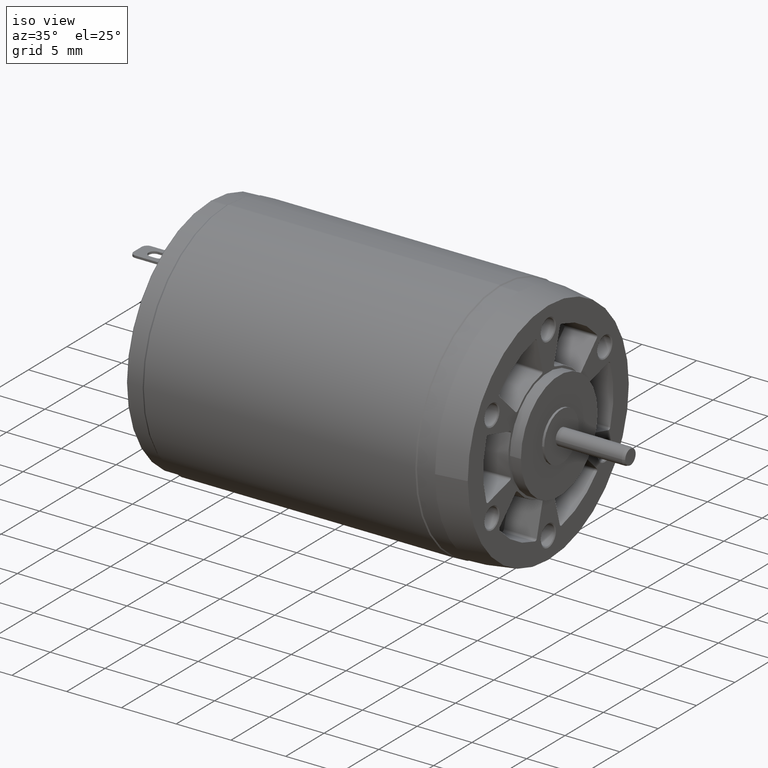
[diagram: clean part render]
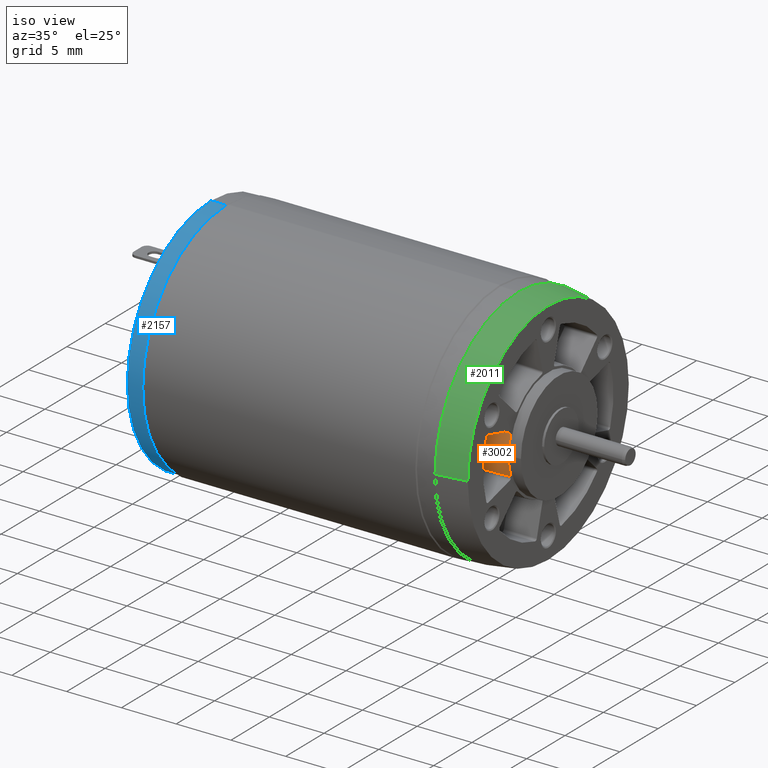
[diagram: same view with three faces highlighted in distinct colors, each labeled with its STEP entity id]
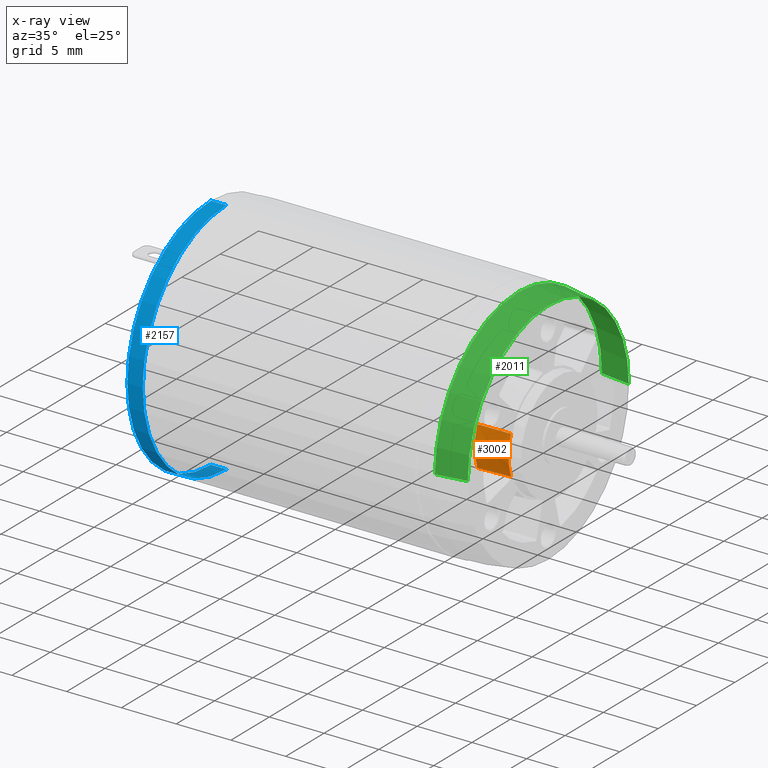
[diagram: x-ray of the same camera — body ghosted, the three highlighted faces saturated]
A machine part, iso view with three faces highlighted in distinct colors.
The next image is the same camera in x-ray (body ghosted, the three faces saturated) — at least one of them is partly hidden behind the body in this view.
Their STEP definitions:

[orange] entity #3002 — the highlighted conical surface has half-angle 2 deg.
#204=CARTESIAN_POINT('',(1.077665842305E2,2.428669876325E0,-3.989812658115E0));
#205=DIRECTION('',(-1.E0,-2.318000014156E-9,0.E0));
#206=DIRECTION('',(2.178664551331E-9,-9.398900694129E-1,-3.414771696893E-1));
#207=AXIS2_PLACEMENT_3D('',#204,#205,#206);
#999=CARTESIAN_POINT('',(1.047665842314E2,2.428669869371E0,-3.989812658115E0));
#1000=DIRECTION('',(1.E0,2.318000014156E-9,0.E0));
#1001=DIRECTION('',(2.179971639670E-9,-9.404535253444E-1,3.399222950430E-1));
#1002=AXIS2_PLACEMENT_3D('',#999,#1000,#1001);
#1031=CARTESIAN_POINT('',(1.047665828193E2,-2.560169979035E0,
-2.186653403359E0));
#1032=CARTESIAN_POINT('',(1.057665824605E2,-2.526329445484E0,
-2.195804452301E0));
#1033=CARTESIAN_POINT('',(1.067665820155E2,-2.492549014340E0,
-2.204998520851E0));
#1034=CARTESIAN_POINT('',(1.077665816572E2,-2.458708493840E0,
-2.214149565055E0));
#1036=CARTESIAN_POINT('',(1.047665820223E2,-2.560170228926E0,
-5.792971890259E0));
#1037=CARTESIAN_POINT('',(1.057665813772E2,-2.526318908624E0,
-5.783849529114E0));
#1038=CARTESIAN_POINT('',(1.067665835989E2,-2.492549121047E0,
-5.774626735226E0));
#1039=CARTESIAN_POINT('',(1.077665829538E2,-2.458697800744E0,
-5.765504374081E0));
#1537=CARTESIAN_POINT('',(1.077665842418E2,-2.458670080572E0,
-5.765461821887E0));
#1538=CARTESIAN_POINT('',(1.077665842418E2,-2.458670088295E0,
-2.214163515600E0));
#1539=VERTEX_POINT('',#1537);
#1540=VERTEX_POINT('',#1538);
#1676=CARTESIAN_POINT('',(1.047665842430E2,-2.560124017330E0,
-2.186637677360E0));
#1677=CARTESIAN_POINT('',(1.047665842430E2,-2.560124016306E0,
-5.792987641704E0));
#1678=VERTEX_POINT('',#1676);
#1679=VERTEX_POINT('',#1677);
#2990=CARTESIAN_POINT('',(1.062665820931E2,2.428669872848E0,-3.989812658115E0));
#2991=DIRECTION('',(-1.E0,-2.318000014156E-9,0.E0));
#2992=DIRECTION('',(2.179325282127E-9,-9.401748355552E-1,3.406923518201E-1));
#2993=AXIS2_PLACEMENT_3D('',#2990,#2991,#2992);
#2994=CONICAL_SURFACE('',#2993,5.252287133618E0,1.999998573254E0);
#2995=ORIENTED_EDGE('',*,*,#2947,.T.);
#2996=ORIENTED_EDGE('',*,*,#1933,.F.);
#2998=ORIENTED_EDGE('',*,*,#2997,.F.);
#2999=ORIENTED_EDGE('',*,*,#2973,.F.);
#3000=EDGE_LOOP('',(#2995,#2996,#2998,#2999));
#3001=FACE_OUTER_BOUND('',#3000,.F.);
#3002=ADVANCED_FACE('',(#3001),#2994,.T.);
#208=CIRCLE('',#207,5.199905942138E0);
#1003=CIRCLE('',#1002,5.304668175787E0);
#1035=B_SPLINE_CURVE_WITH_KNOTS('',3,(#1031,#1032,#1033,#1034),.UNSPECIFIED.,
.F.,.F.,(4,4),(0.E0,1.E0),.UNSPECIFIED.);
#1040=B_SPLINE_CURVE_WITH_KNOTS('',3,(#1036,#1037,#1038,#1039),.UNSPECIFIED.,
.F.,.F.,(4,4),(0.E0,1.E0),.UNSPECIFIED.);
#1933=EDGE_CURVE('',#1539,#1540,#208,.T.);
#2947=EDGE_CURVE('',#1678,#1540,#1035,.T.);
#2973=EDGE_CURVE('',#1678,#1679,#1003,.T.);
#2997=EDGE_CURVE('',#1679,#1539,#1040,.T.);

[blue] entity #2157 — the highlighted cylindrical surface (partial cylindrical patch) has radius 10.9 mm, axis along (-1, 0, 0).
#381=DIRECTION('',(-1.E0,0.E0,-2.331260796813E-7));
#382=VECTOR('',#381,1.400000792626E0);
#383=CARTESIAN_POINT('',(7.836658279336E1,2.428669867425E0,-1.488981265812E1));
#384=LINE('',#383,#382);
#385=CARTESIAN_POINT('',(7.696658204736E1,2.428669869102E0,-3.989812658115E0));
#386=DIRECTION('',(-1.E0,0.E0,0.E0));
#387=DIRECTION('',(0.E0,-2.050451959090E-10,-1.E0));
#388=AXIS2_PLACEMENT_3D('',#385,#386,#387);
#390=DIRECTION('',(1.E0,6.623301329133E-11,-2.331258519271E-7));
#391=VECTOR('',#390,1.400000792626E0);
#392=CARTESIAN_POINT('',(7.696658200073E1,2.428669868450E0,6.910187668261E0));
#393=LINE('',#392,#391);
#394=CARTESIAN_POINT('',(7.836658279336E1,2.428669869102E0,-3.989812658115E0));
#395=DIRECTION('',(1.E0,0.E0,0.E0));
#396=DIRECTION('',(0.E0,0.E0,1.E0));
#397=AXIS2_PLACEMENT_3D('',#394,#395,#396);
#1425=CARTESIAN_POINT('',(7.696658200073E1,2.428669868450E0,6.910187668261E0));
#1426=VERTEX_POINT('',#1425);
#1427=CARTESIAN_POINT('',(7.696658204736E1,2.428669866867E0,-1.488981265811E1));
#1428=VERTEX_POINT('',#1427);
#1429=CARTESIAN_POINT('',(7.836658279336E1,2.428669869102E0,6.910187341885E0));
#1430=CARTESIAN_POINT('',(7.836658279336E1,2.428669864631E0,-1.488981265812E1));
#1431=VERTEX_POINT('',#1429);
#1432=VERTEX_POINT('',#1430);
#2144=CARTESIAN_POINT('',(7.841778554562E1,2.428669869102E0,-3.989812658115E0));
#2145=DIRECTION('',(-1.E0,0.E0,0.E0));
#2146=DIRECTION('',(0.E0,0.E0,1.E0));
#2147=AXIS2_PLACEMENT_3D('',#2144,#2145,#2146);
#2148=CYLINDRICAL_SURFACE('',#2147,1.09E1);
#2149=ORIENTED_EDGE('',*,*,#2139,.T.);
#2151=ORIENTED_EDGE('',*,*,#2150,.T.);
#2152=ORIENTED_EDGE('',*,*,#2135,.T.);
#2154=ORIENTED_EDGE('',*,*,#2153,.T.);
#2155=EDGE_LOOP('',(#2149,#2151,#2152,#2154));
#2156=FACE_OUTER_BOUND('',#2155,.F.);
#2157=ADVANCED_FACE('',(#2156),#2148,.T.);
#389=CIRCLE('',#388,1.09E1);
#398=CIRCLE('',#397,1.09E1);
#2135=EDGE_CURVE('',#1426,#1431,#393,.T.);
#2139=EDGE_CURVE('',#1432,#1428,#384,.T.);
#2150=EDGE_CURVE('',#1428,#1426,#389,.T.);
#2153=EDGE_CURVE('',#1431,#1432,#398,.T.);

[green] entity #2011 — the highlighted conical surface has half-angle 8 deg.
#84=CARTESIAN_POINT('',(1.077665827934E2,2.428669869102E0,-3.989812658115E0));
#85=DIRECTION('',(-1.E0,0.E0,0.E0));
#86=DIRECTION('',(0.E0,-1.E0,0.E0));
#87=AXIS2_PLACEMENT_3D('',#84,#85,#86);
#279=DIRECTION('',(-9.902680687445E-1,-1.391731009392E-1,-5.075492830244E-10));
#280=VECTOR('',#279,2.749448509970E0);
#281=CARTESIAN_POINT('',(1.077665827935E2,-8.071330130885E0,-3.989812658115E0));
#282=LINE('',#281,#280);
#283=DIRECTION('',(9.902680687445E-1,-1.391731009392E-1,1.096729974553E-9));
#284=VECTOR('',#283,2.749448509890E0);
#285=CARTESIAN_POINT('',(1.050438917274E2,1.331131914409E1,-3.989812662209E0));
#286=LINE('',#285,#284);
#287=CARTESIAN_POINT('',(1.050438917274E2,2.428669869102E0,-3.989812658115E0));
#288=DIRECTION('',(1.E0,0.E0,0.E0));
#289=DIRECTION('',(0.E0,0.E0,1.E0));
#290=AXIS2_PLACEMENT_3D('',#287,#288,#289);
#302=CARTESIAN_POINT('',(1.050438917274E2,2.428669869102E0,-3.989812658115E0));
#303=DIRECTION('',(1.E0,0.E0,0.E0));
#304=DIRECTION('',(0.E0,1.E0,-4.102069115143E-10));
#305=AXIS2_PLACEMENT_3D('',#302,#303,#304);
#1465=CARTESIAN_POINT('',(1.077665827934E2,1.292866986910E1,-3.989812658115E0));
#1466=CARTESIAN_POINT('',(1.077665827934E2,-8.071330130895E0,
-3.989812658115E0));
#1467=VERTEX_POINT('',#1465);
#1468=VERTEX_POINT('',#1466);
#1569=CARTESIAN_POINT('',(1.050438917274E2,1.331131914409E1,-3.989812662209E0));
#1570=VERTEX_POINT('',#1569);
#1573=CARTESIAN_POINT('',(1.050438917274E2,-8.453979405890E0,
-3.989812659510E0));
#1574=VERTEX_POINT('',#1573);
#1575=CARTESIAN_POINT('',(1.050438917274E2,2.428669869102E0,6.892836616883E0));
#1576=VERTEX_POINT('',#1575);
#1997=CARTESIAN_POINT('',(1.064052372604E2,2.428669869102E0,-3.989812658115E0));
#1998=DIRECTION('',(-1.E0,0.E0,0.E0));
#1999=DIRECTION('',(0.E0,-1.E0,0.E0));
#2000=AXIS2_PLACEMENT_3D('',#1997,#1998,#1999);
#2001=CONICAL_SURFACE('',#2000,1.069132463749E1,7.999999998752E0);
#2002=ORIENTED_EDGE('',*,*,#1829,.F.);
#2003=ORIENTED_EDGE('',*,*,#1991,.T.);
#2005=ORIENTED_EDGE('',*,*,#2004,.F.);
#2007=ORIENTED_EDGE('',*,*,#2006,.F.);
#2008=ORIENTED_EDGE('',*,*,#1985,.T.);
#2009=EDGE_LOOP('',(#2002,#2003,#2005,#2007,#2008));
#2010=FACE_OUTER_BOUND('',#2009,.F.);
#2011=ADVANCED_FACE('',(#2010),#2001,.T.);
#88=CIRCLE('',#87,1.05E1);
#291=CIRCLE('',#290,1.088264927500E1);
#306=CIRCLE('',#305,1.088264927500E1);
#1829=EDGE_CURVE('',#1468,#1467,#88,.T.);
#1985=EDGE_CURVE('',#1570,#1467,#286,.T.);
#1991=EDGE_CURVE('',#1468,#1574,#282,.T.);
#2004=EDGE_CURVE('',#1576,#1574,#291,.T.);
#2006=EDGE_CURVE('',#1570,#1576,#306,.T.);